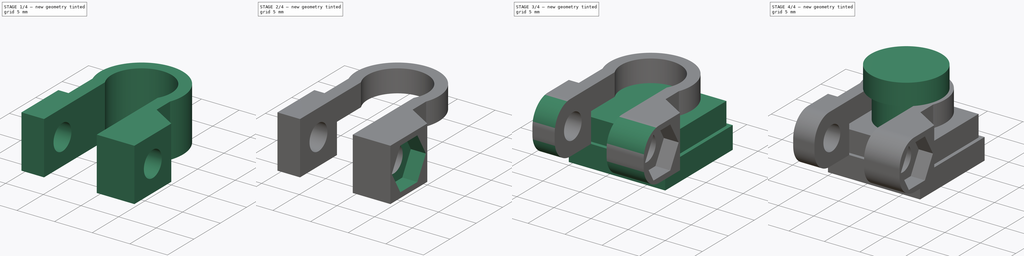
[diagram: build sequence overview — one tinted view per stage of 4, left to right]
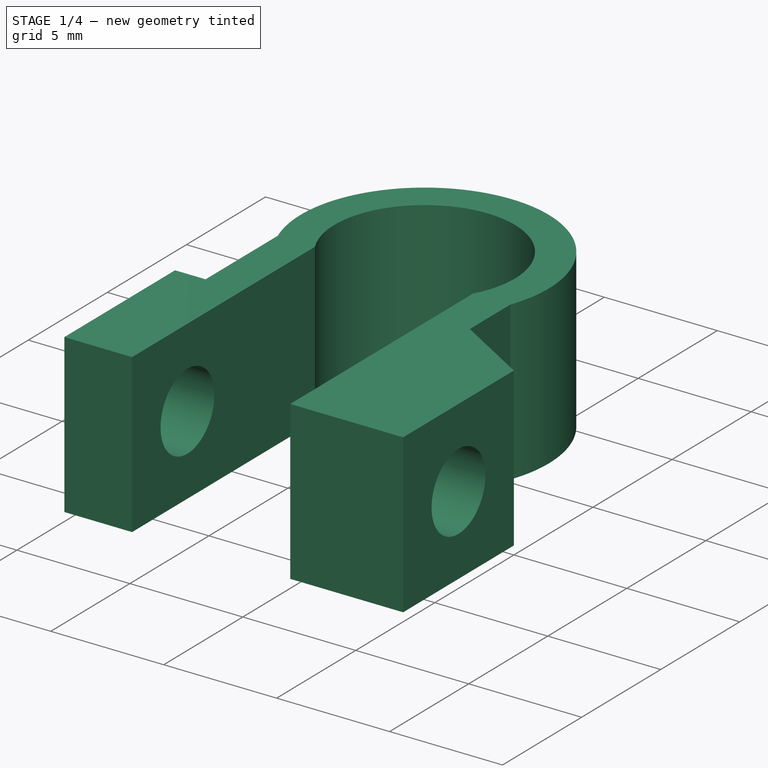
[diagram: stage 1 of 4 — iso view after this stage's code; geometry added in this stage tinted green]
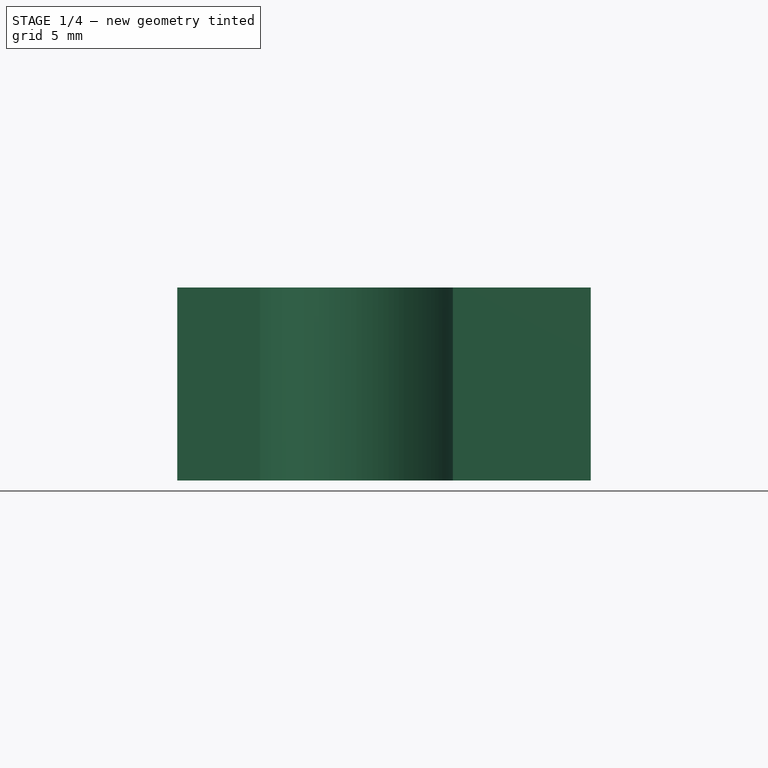
[diagram: stage 1 of 4 — front view after this stage's code; geometry added in this stage tinted green]
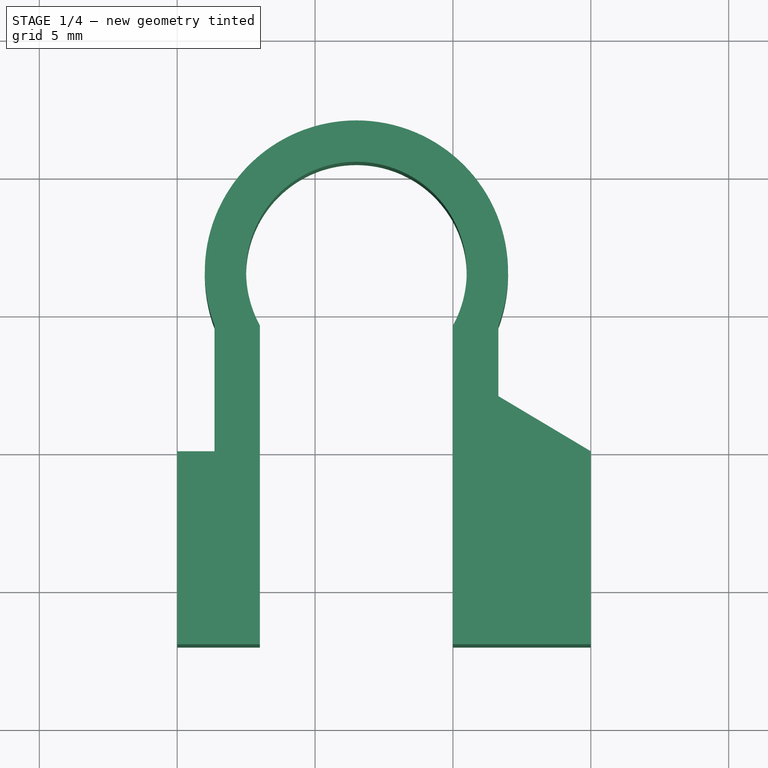
[diagram: stage 1 of 4 — top view after this stage's code; geometry added in this stage tinted green]
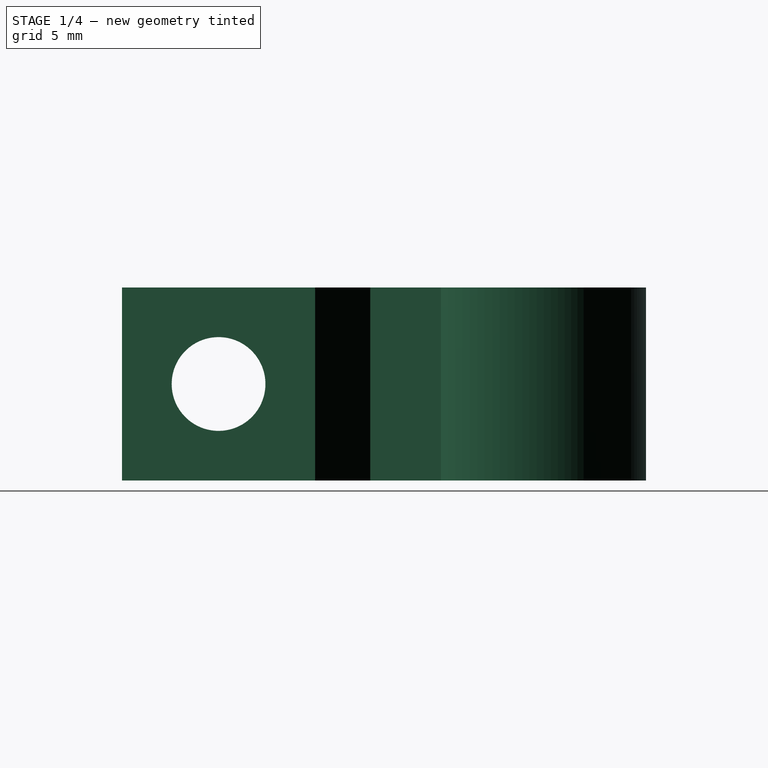
[diagram: stage 1 of 4 — right view after this stage's code; geometry added in this stage tinted green]
FCSTD DOCUMENT  (FreeCAD 0.16R6700 (Git))
Label: camera2
License: All rights reserved
LicenseURL: http://en.wikipedia.org/wiki/All_rights_reserved
objects: Sketcher::SketchObject×7, PartDesign::Pad×4, PartDesign::Pocket×3, Part::Box×1, PartDesign::Fillet×1
note: 23 computed .brp shape members not serialized (recipe doc carries the construction recipe); baked Part::Feature solids carry a one-line shape summary decoded from their .brp

FEATURE [Sketcher::SketchObject] Sketch003
  Placement = pos=(0,0,3) rot=(0,0,1;0rad)
  sketch-geometry (15):
    g0: ArcOfCircle CenterX=6.5 CenterY=6.5 CenterZ=0 NormalX=0 NormalY=0 NormalZ=1 Radius=4 StartAngle=5.77782 EndAngle=9.93014
    g1: ArcOfCircle CenterX=6.5 CenterY=6.5 CenterZ=0 NormalX=0 NormalY=0 NormalZ=1 Radius=5.5 StartAngle=5.92338 EndAngle=9.78458
    g2: LineSegment StartX=0 StartY=0 StartZ=0 EndX=0 EndY=-7 EndZ=0
    g3: LineSegment StartX=0 StartY=-7 StartZ=0 EndX=3 EndY=-7 EndZ=0
    g4: LineSegment StartX=3 StartY=-7 StartZ=0 EndX=3 EndY=4.56351 EndZ=0
    g5: LineSegment StartX=10 StartY=4.56351 StartZ=0 EndX=10 EndY=-7 EndZ=0
    g6: LineSegment StartX=10 StartY=-7 StartZ=0 EndX=15 EndY=-7 EndZ=0
    g7: LineSegment StartX=15 StartY=-7 StartZ=0 EndX=15 EndY=0 EndZ=0
    g8: LineSegment [constr] StartX=2.5 StartY=6.5 StartZ=0 EndX=10.5 EndY=6.5 EndZ=0
    g9: LineSegment [constr] StartX=3 StartY=-7 StartZ=0 EndX=10 EndY=-7 EndZ=0
    g10: LineSegment [constr] StartX=1.35218 StartY=4.56351 StartZ=0 EndX=11.6478 EndY=4.56351 EndZ=0
    g11: LineSegment StartX=1.35218 StartY=4.56351 StartZ=0 EndX=1.35218 EndY=0 EndZ=0
    g12: LineSegment StartX=0 StartY=0 StartZ=0 EndX=1.35218 EndY=0 EndZ=0
    g13: LineSegment StartX=11.6478 StartY=4.56351 StartZ=0 EndX=11.6478 EndY=2 EndZ=0
    g14: LineSegment StartX=11.6478 StartY=2 StartZ=0 EndX=15 EndY=0 EndZ=0
  constraints (46):
    c: Radius(g0) = 4
    c: DistanceX(g-1,g0) = 6.5
    c: DistanceY(g-1,g0) = 6.5
    c: Coincident(g1,g0)
    c: Radius(g1) = 5.5
    c: Coincident(g2,g3)
    c: Coincident(g3,g4)
    c: Horizontal(g3)
    c: Vertical(g2)
    c: Vertical(g4)
    c: Coincident(g5,g6)
    c: Coincident(g6,g7)
    c: Horizontal(g6)
    c: Vertical(g5)
    c: Vertical(g7)
    c: PointOnObject(g8,g0)
    c: PointOnObject(g8,g0)
    c: Horizontal(g8)
    c: PointOnObject(g0,g8)
    c: DistanceX(g8,g4) = 0.5
    c: DistanceX(g6,g6) = 5
    c: DistanceX(g5,g8) = 0.5
    c: Distance(g3) = 3
    c: PointOnObject(g5,g0)
    c: DistanceY(g2,g-1) = 7
    c: Coincident(g9,g3)
    c: Coincident(g9,g5)
    c: Horizontal(g9)
    c: Coincident(g10,g1)
    c: Coincident(g10,g1)
    c: Horizontal(g10)
    c: PointOnObject(g0,g10)
    c: PointOnObject(g0,g10)
    c: Coincident(g0,g4)
    c: Coincident(g11,g1)
    c: Vertical(g11)
    c: Coincident(g12,g-1)
    c: Coincident(g12,g11)
    c: Horizontal(g12)
    c: Coincident(g13,g1)
    c: Vertical(g13)
    c: Coincident(g14,g13)
    c: PointOnObject(g2,g12)
    c: Coincident(g7,g14)
    c: PointOnObject(g7,g-1)
    c: DistanceY(g7,g13) = 2
FEATURE [PartDesign::Pad] Pad003
  Length = 7
  Length2 = 100
  Placement = pos=(0,0,3) rot=(0,0,1;0rad)
  Sketch = -> Sketch003
  Type = 0
FEATURE [Sketcher::SketchObject] Sketch004
  Placement = pos=(0,0,3) rot=(0.57735,-0.57735,-0.57735;2.0944rad)
  Support = -> Pad003 [Face4]
  sketch-geometry (1):
    g0: Circle CenterX=3.5 CenterY=3.5 CenterZ=0 NormalX=0 NormalY=0 NormalZ=1 Radius=1.7
  constraints (3):
    c: Radius(g0) = 1.7
    c: DistanceY(g-1,g0) = 3.5
    c: DistanceX(g-1,g0) = 3.5
FEATURE [PartDesign::Pocket] Pocket
  Length = 20
  Placement = pos=(0,0,3) rot=(0,0,1;0rad)
  Sketch = -> Sketch004
  Type = 0
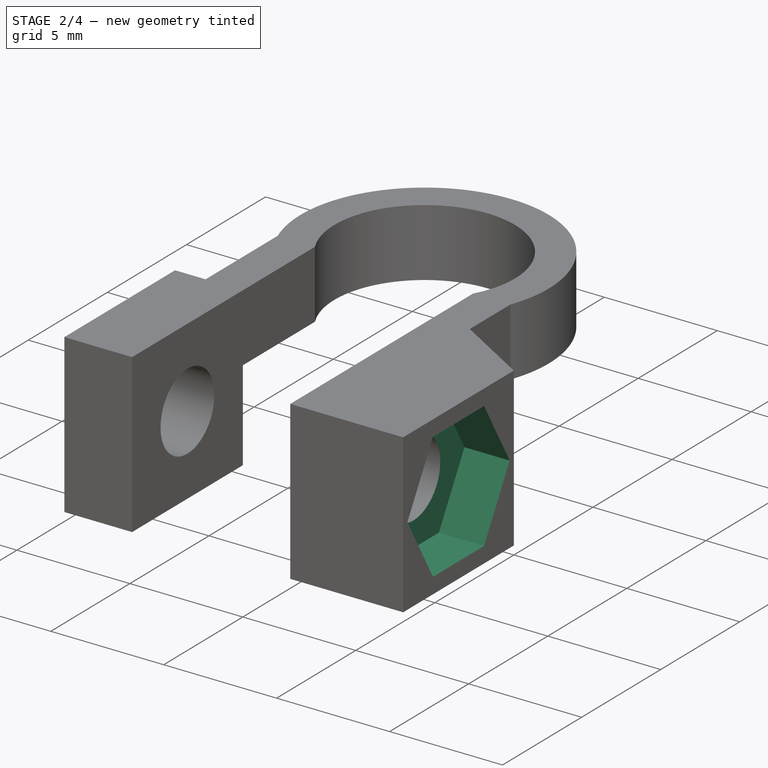
[diagram: stage 2 of 4 — iso view after this stage's code; geometry added in this stage tinted green]
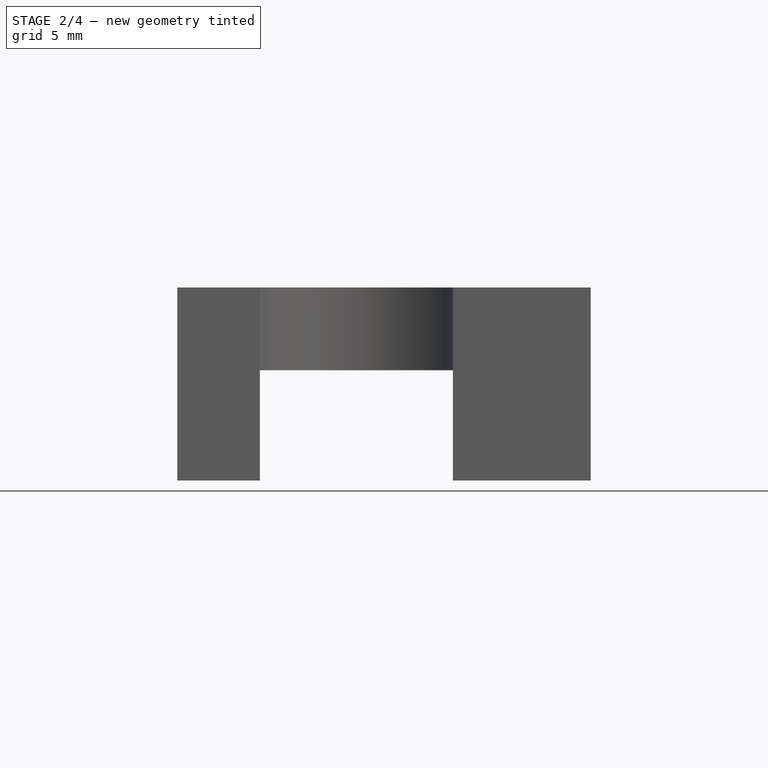
[diagram: stage 2 of 4 — front view after this stage's code; geometry added in this stage tinted green]
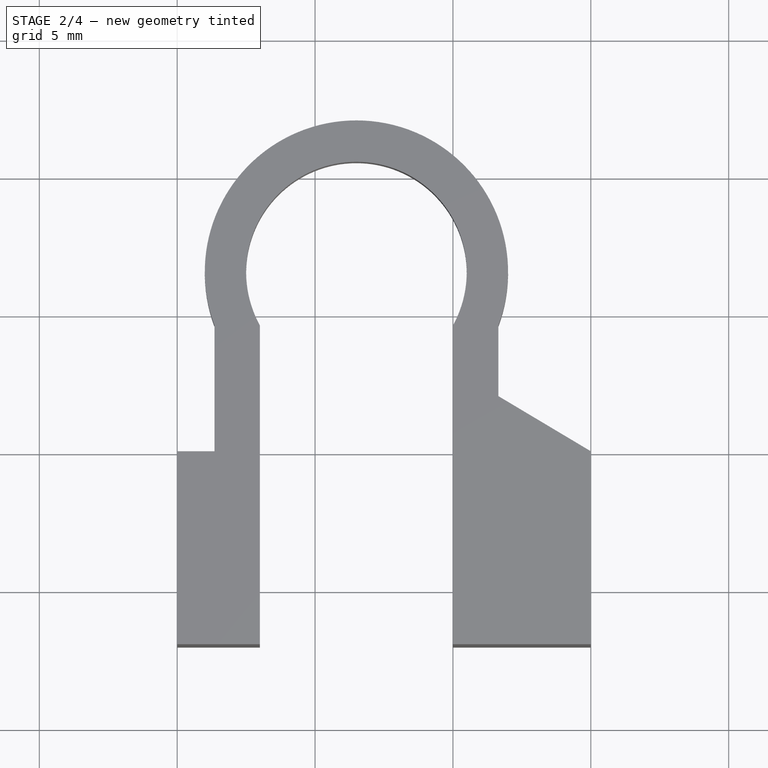
[diagram: stage 2 of 4 — top view after this stage's code; geometry added in this stage tinted green]
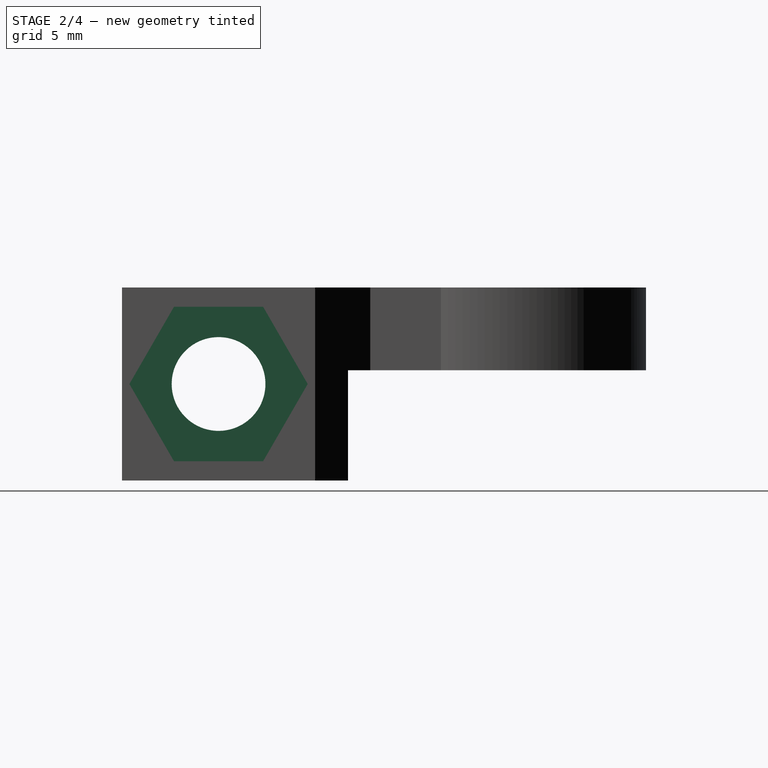
[diagram: stage 2 of 4 — right view after this stage's code; geometry added in this stage tinted green]
FEATURE [Sketcher::SketchObject] Sketch005
  Placement = pos=(15,0,3) rot=(0.57735,0.57735,0.57735;2.0944rad)
  Support = -> Pocket [Face16]
  sketch-geometry (7):
    g0: LineSegment StartX=-5.11658 StartY=6.3 StartZ=0 EndX=-6.73316 EndY=3.5 EndZ=0
    g1: LineSegment StartX=-6.73316 StartY=3.5 StartZ=0 EndX=-5.11658 EndY=0.7 EndZ=0
    g2: LineSegment StartX=-5.11658 StartY=0.7 StartZ=0 EndX=-1.88342 EndY=0.7 EndZ=0
    g3: LineSegment StartX=-1.88342 StartY=0.7 StartZ=0 EndX=-0.266838 EndY=3.5 EndZ=0
    g4: LineSegment StartX=-0.266838 StartY=3.5 StartZ=0 EndX=-1.88342 EndY=6.3 EndZ=0
    g5: LineSegment StartX=-1.88342 StartY=6.3 StartZ=0 EndX=-5.11658 EndY=6.3 EndZ=0
    g6: Circle [constr] CenterX=-3.5 CenterY=3.5 CenterZ=0 NormalX=0 NormalY=0 NormalZ=1 Radius=3.23316
  constraints (17):
    c: Coincident(g0,g1)
    c: Coincident(g1,g2)
    c: Coincident(g2,g3)
    c: Coincident(g3,g4)
    c: Coincident(g4,g5)
    c: Coincident(g5,g0)
    c: Equal(g0, g1-g5) x5
    c: PointOnObject(g0,g6)
    c: PointOnObject(g1,g6)
    c: PointOnObject(g2,g6)
    c: PointOnObject(g3,g6)
    c: PointOnObject(g4,g6)
    c: PointOnObject(g5,g6)
    c: Horizontal(g5)
    c: DistanceY(g2,g4) = 5.6
    c: DistanceX(g6,g-1) = 3.5
    c: DistanceY(g-1,g6) = 3.5
FEATURE [PartDesign::Pocket] Pocket001
  Length = 2
  Placement = pos=(0,0,3) rot=(0,0,1;0rad)
  Sketch = -> Sketch005
  Type = 0
FEATURE [Sketcher::SketchObject] Sketch006
  Placement = pos=(0,0,3) rot=(1,0,0;3.14159rad)
  Support = -> Pocket001 [Face4]
  sketch-geometry (4):
    g0: LineSegment StartX=0 StartY=0 StartZ=0 EndX=13 EndY=0 EndZ=0
    g1: LineSegment StartX=13 StartY=0 StartZ=0 EndX=13 EndY=-13 EndZ=0
    g2: LineSegment StartX=13 StartY=-13 StartZ=0 EndX=0 EndY=-13 EndZ=0
    g3: LineSegment StartX=0 StartY=-13 StartZ=0 EndX=0 EndY=0 EndZ=0
  constraints (11):
    c: Coincident(g0,g1)
    c: Coincident(g1,g2)
    c: Coincident(g2,g3)
    c: Coincident(g3,g0)
    c: Horizontal(g0)
    c: Horizontal(g2)
    c: Vertical(g1)
    c: Vertical(g3)
    c: Coincident(g0,g-1)
    c: Distance(g1) = 13
    c: Distance(g2) = 13
FEATURE [PartDesign::Pocket] Pocket002
  Length = 4
  Placement = pos=(0,0,3) rot=(0,0,1;0rad)
  Sketch = -> Sketch006
  Type = 0
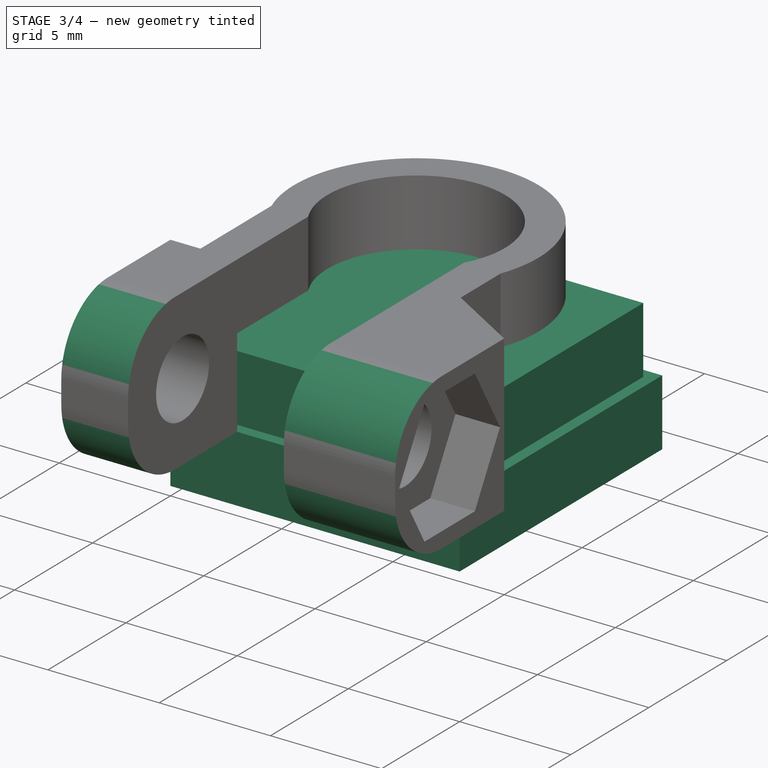
[diagram: stage 3 of 4 — iso view after this stage's code; geometry added in this stage tinted green]
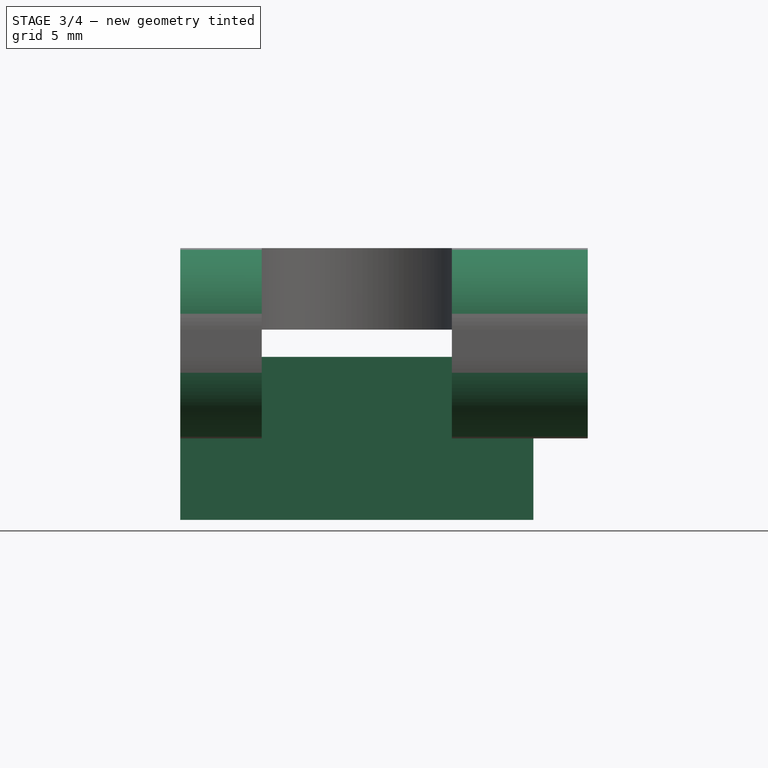
[diagram: stage 3 of 4 — front view after this stage's code; geometry added in this stage tinted green]
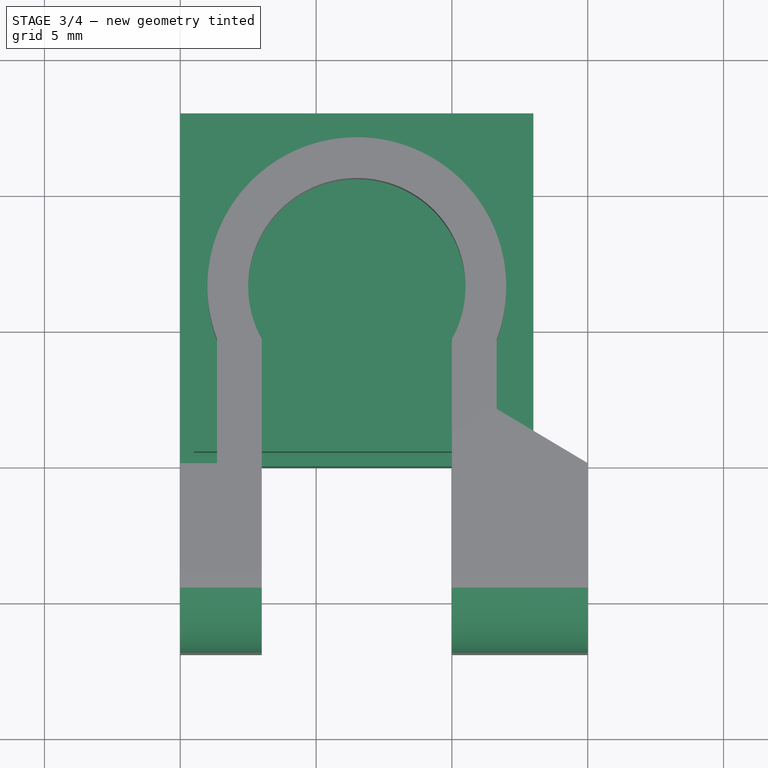
[diagram: stage 3 of 4 — top view after this stage's code; geometry added in this stage tinted green]
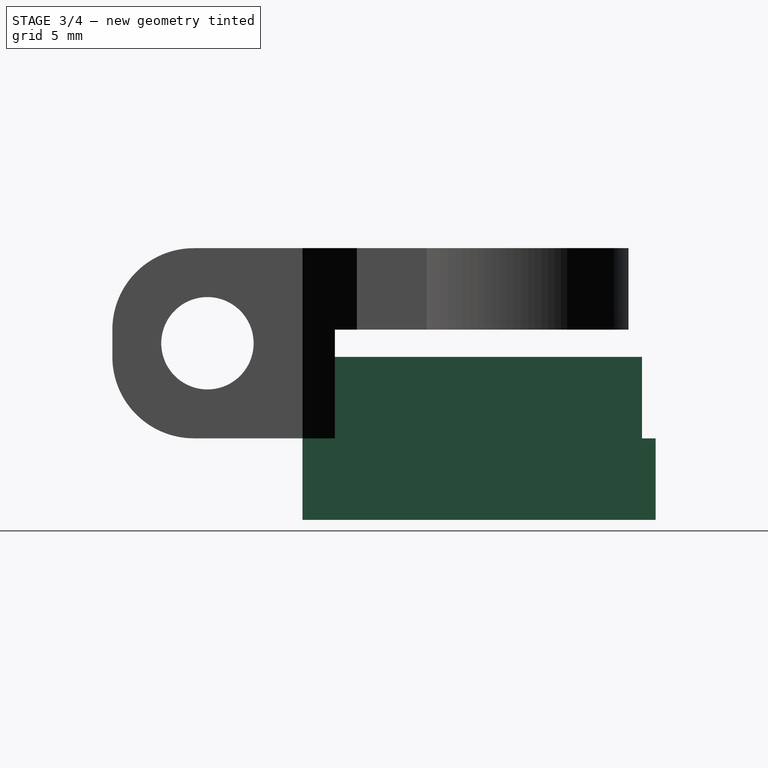
[diagram: stage 3 of 4 — right view after this stage's code; geometry added in this stage tinted green]
FEATURE [Part::Box] Box  label="Cube"
  Height = 3
  Length = 13
  Width = 13
FEATURE [Sketcher::SketchObject] Sketch
  Placement = pos=(0,0,3) rot=(0,0,1;0rad)
  Support = -> Box [Face6]
  sketch-geometry (4):
    g0: LineSegment StartX=0.5 StartY=12.5 StartZ=0 EndX=12.5 EndY=12.5 EndZ=0
    g1: LineSegment StartX=12.5 StartY=12.5 StartZ=0 EndX=12.5 EndY=0.5 EndZ=0
    g2: LineSegment StartX=12.5 StartY=0.5 StartZ=0 EndX=0.5 EndY=0.5 EndZ=0
    g3: LineSegment StartX=0.5 StartY=0.5 StartZ=0 EndX=0.5 EndY=12.5 EndZ=0
  constraints (12):
    c: Coincident(g0,g1)
    c: Coincident(g1,g2)
    c: Coincident(g2,g3)
    c: Coincident(g3,g0)
    c: Horizontal(g0)
    c: Horizontal(g2)
    c: Vertical(g1)
    c: Vertical(g3)
    c: Distance(g3) = 12
    c: Distance(g2) = 12
    c: DistanceY(g-1,g2) = 0.5
    c: DistanceX(g-1,g2) = 0.5
FEATURE [PartDesign::Pad] Pad
  Length = 3
  Length2 = 100
  Sketch = -> Sketch
  Type = 0
FEATURE [PartDesign::Fillet] Fillet
  Base = -> Pocket002 [Edge62,Edge27,Edge19,Edge47]
  Placement = pos=(0,0,3) rot=(0,0,1;0rad)
  Radius = 3
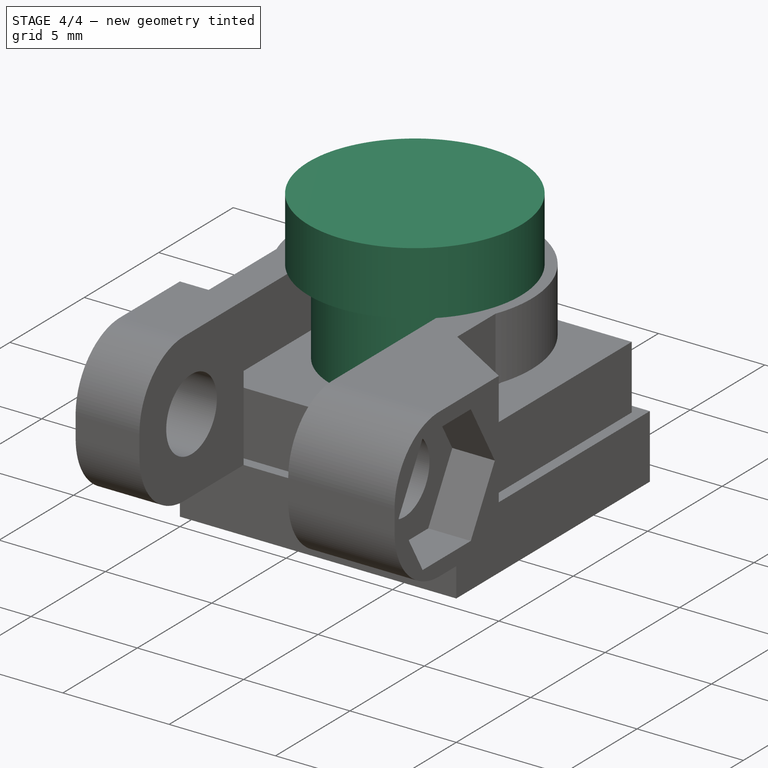
[diagram: stage 4 of 4 — iso view after this stage's code; geometry added in this stage tinted green]
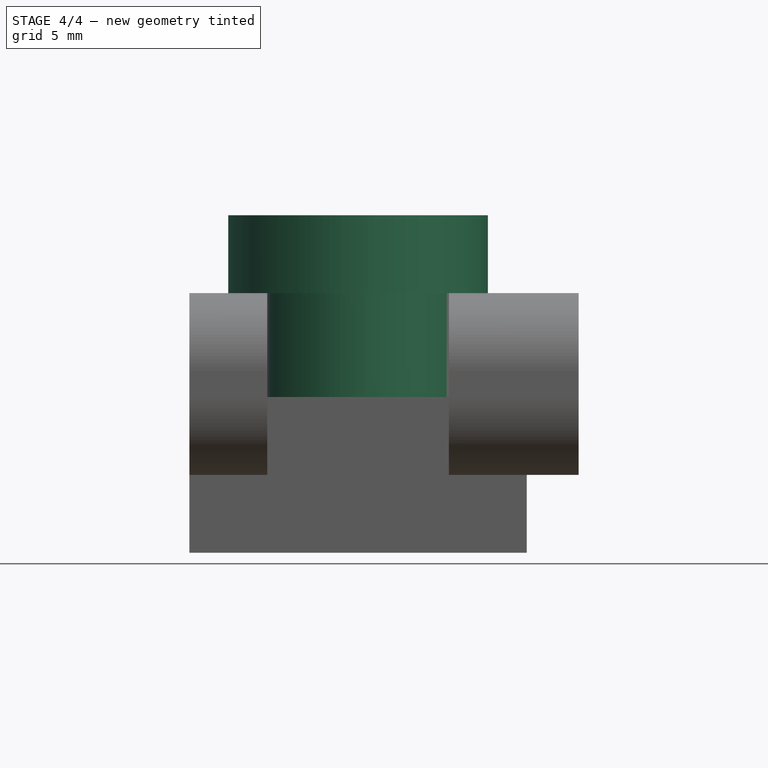
[diagram: stage 4 of 4 — front view after this stage's code; geometry added in this stage tinted green]
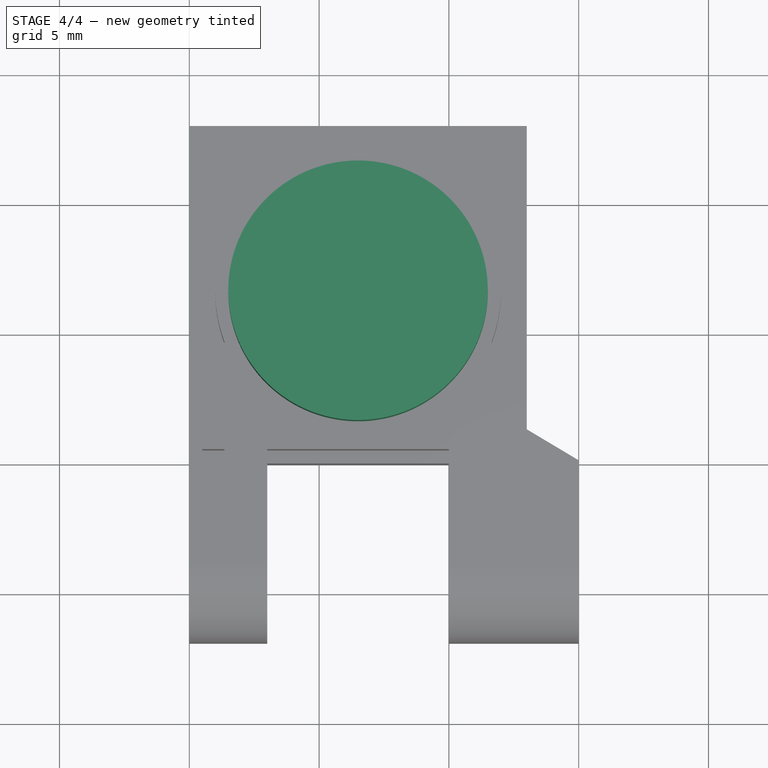
[diagram: stage 4 of 4 — top view after this stage's code; geometry added in this stage tinted green]
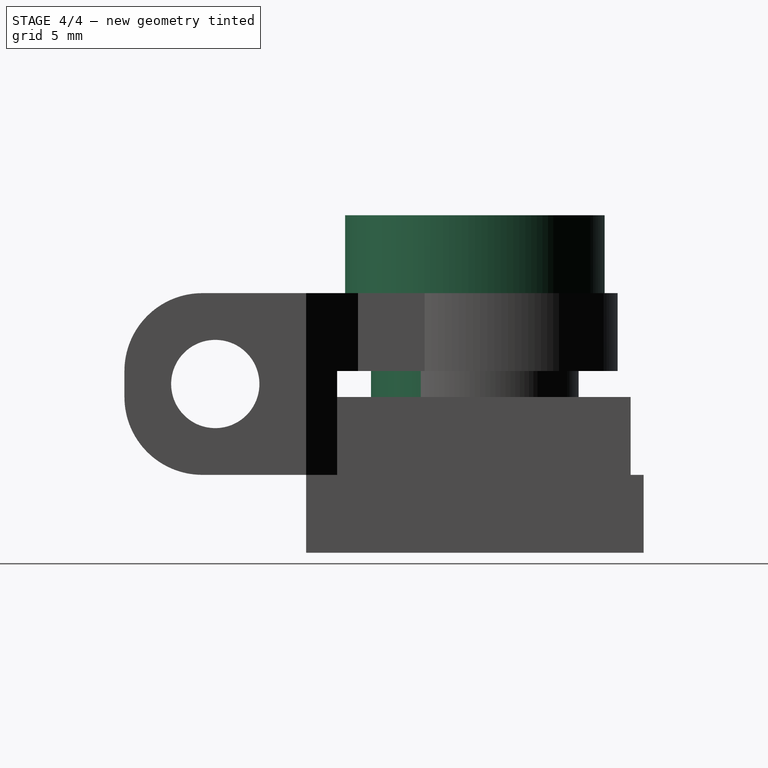
[diagram: stage 4 of 4 — right view after this stage's code; geometry added in this stage tinted green]
FEATURE [Sketcher::SketchObject] Sketch001
  Placement = pos=(0,0,6) rot=(0,0,1;0rad)
  Support = -> Pad [Face11]
  sketch-geometry (1):
    g0: Circle CenterX=6.5 CenterY=6.5 CenterZ=0 NormalX=0 NormalY=0 NormalZ=1 Radius=4
  constraints (3):
    c: Radius(g0) = 4
    c: DistanceX(g-1,g0) = 6.5
    c: DistanceY(g-1,g0) = 6.5
FEATURE [PartDesign::Pad] Pad001
  Length = 4
  Length2 = 100
  Sketch = -> Sketch001
  Type = 0
FEATURE [Sketcher::SketchObject] Sketch002
  Placement = pos=(0,0,10) rot=(0,0,1;0rad)
  Support = -> Pad001 [Face13]
  sketch-geometry (1):
    g0: Circle CenterX=6.5 CenterY=6.5 CenterZ=0 NormalX=0 NormalY=0 NormalZ=1 Radius=5
  constraints (3):
    c: DistanceY(g-1,g0) = 6.5
    c: DistanceX(g-1,g0) = 6.5
    c: Radius(g0) = 5
FEATURE [PartDesign::Pad] Pad002  label="camera"
  Length = 3
  Length2 = 100
  Sketch = -> Sketch002
  Type = 0
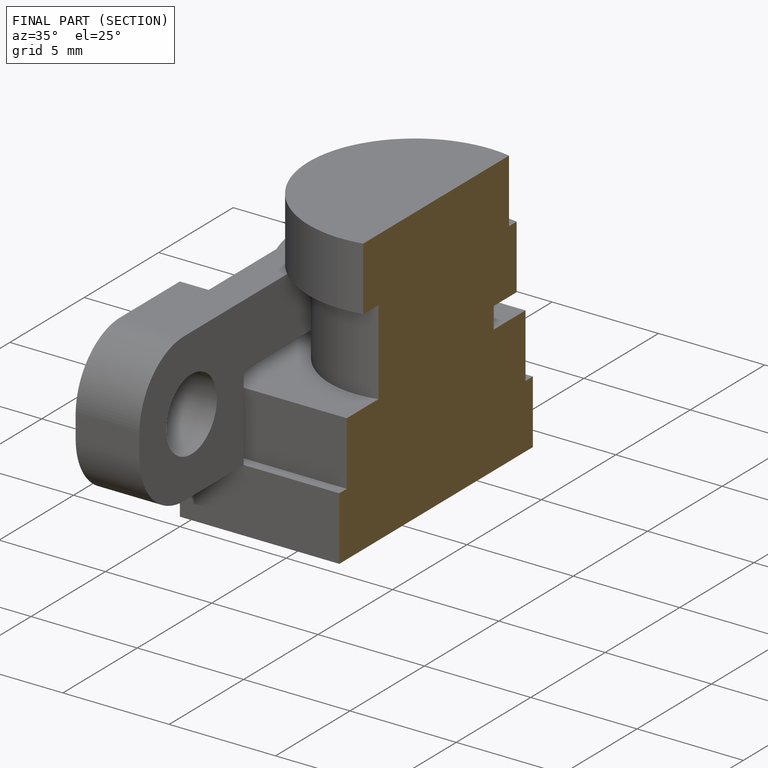
[diagram: finished part — half-section view (interior)]
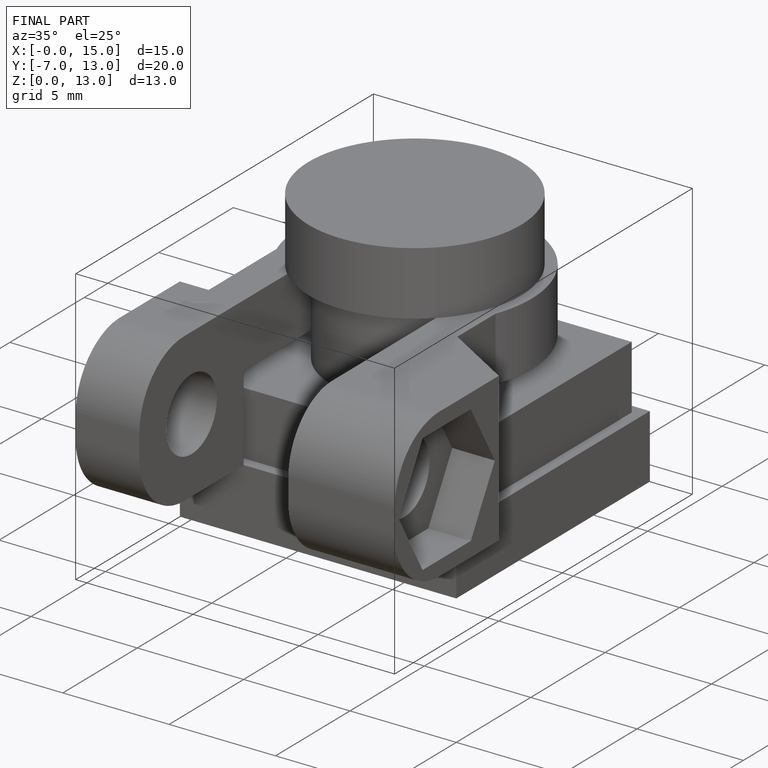
[diagram: finished part — iso view with bounding-box wireframe]
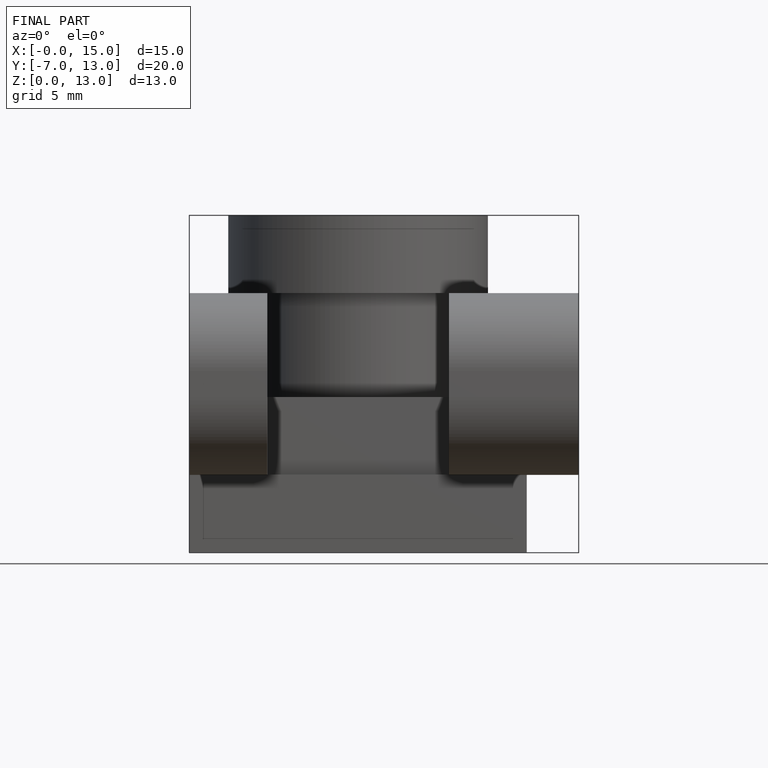
[diagram: finished part — front view with bounding-box wireframe]
